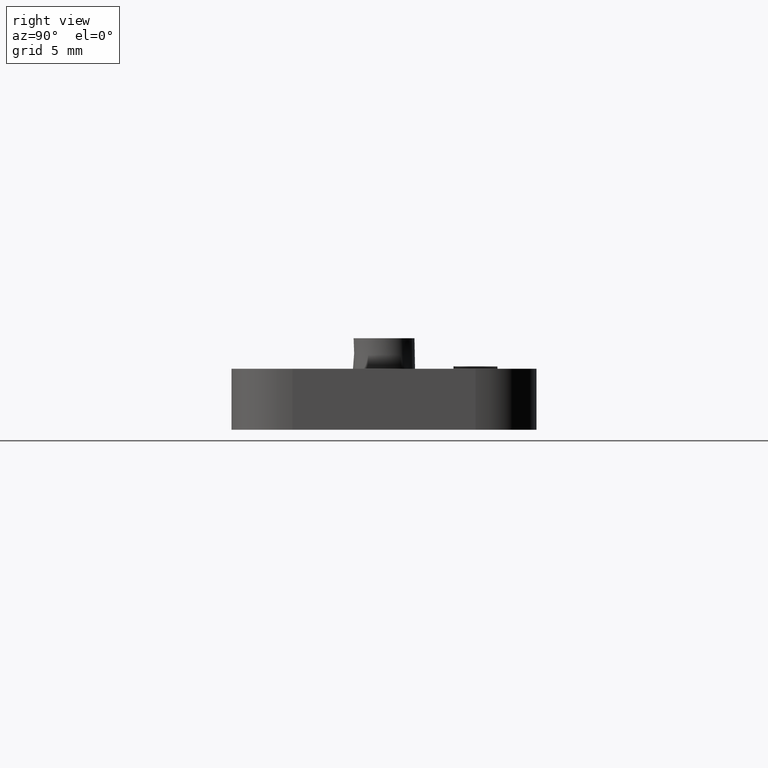
[diagram: clean part render]
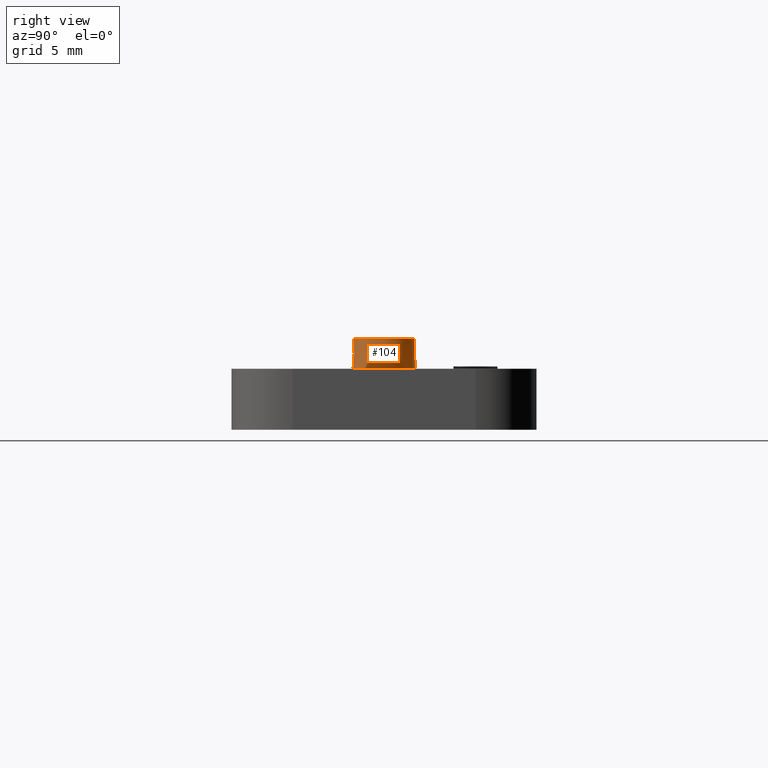
[diagram: same view with one face highlighted and labeled with its STEP entity id]
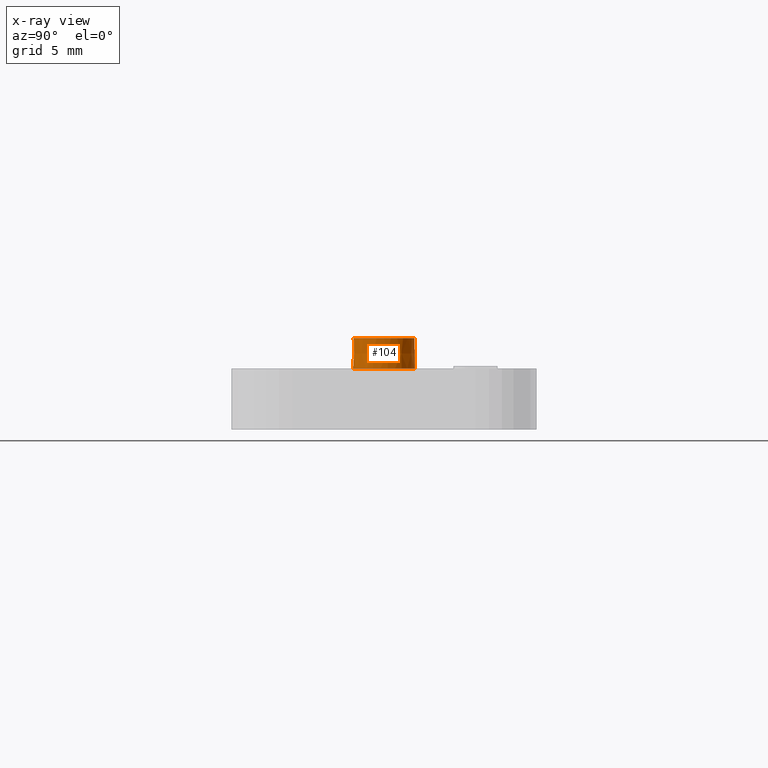
[diagram: x-ray of the same camera — body ghosted, the highlighted face saturated]
A machine part, right view. The second image highlights one B-rep face of the part: STEP entity #104.
The next image is the same camera in x-ray: the body ghosted, the highlighted face saturated — about 0% of this face is hidden behind the body in this view.
In plain terms, the highlighted conical surface has half-angle 1 deg.
Its self-contained STEP definition (entity closure, byte-faithful):
#104 = ADVANCED_FACE( '', ( #483, #484 ), #485, .T. );
#483 = FACE_OUTER_BOUND( '', #1135, .T. );
#484 = FACE_BOUND( '', #1136, .T. );
#485 = CONICAL_SURFACE( '', #1137, 2.50000000000000, 0.0174532925199433 );
#1135 = EDGE_LOOP( '', ( #2138 ) );
#1136 = EDGE_LOOP( '', ( #2139 ) );
#1137 = AXIS2_PLACEMENT_3D( '', #2140, #2141, #2142 );
#2138 = ORIENTED_EDGE( '', *, *, #4119, .F. );
#2139 = ORIENTED_EDGE( '', *, *, #4430, .T. );
#2140 = CARTESIAN_POINT( '', ( 19.5000000000000, 2.57342161903013E-015, 7.50000000000000 ) );
#2141 = DIRECTION( '', ( 0.000000000000000, -6.12303176911189E-017, -1.00000000000000 ) );
#2142 = DIRECTION( '', ( 0.000000000000000, 1.00000000000000, -6.12303176911189E-017 ) );
#4119 = EDGE_CURVE( '', #4890, #4890, #4891, .T. );
#4430 = EDGE_CURVE( '', #5490, #5490, #5491, .T. );
#4890 = VERTEX_POINT( '', #6169 );
#4891 = CIRCLE( '', #6170, 2.54363766232055 );
#5490 = VERTEX_POINT( '', #7067 );
#5491 = CIRCLE( '', #7068, 2.50000000000000 );
#6169 = CARTESIAN_POINT( '', ( 19.5000000000000, 2.54363766232055, 5.00000000000000 ) );
#6170 = AXIS2_PLACEMENT_3D( '', #8159, #8160, #8161 );
#7067 = CARTESIAN_POINT( '', ( 22.0000000000000, 2.72649741325792E-015, 7.50000000000000 ) );
#7068 = AXIS2_PLACEMENT_3D( '', #8496, #8497, #8498 );
#8159 = CARTESIAN_POINT( '', ( 19.5000000000000, 2.42034582480233E-015, 5.00000000000000 ) );
#8160 = DIRECTION( '', ( 0.000000000000000, -6.12303176911189E-017, -1.00000000000000 ) );
#8161 = DIRECTION( '', ( 0.000000000000000, 1.00000000000000, -6.12303176911189E-017 ) );
#8496 = CARTESIAN_POINT( '', ( 19.5000000000000, 2.57342161903013E-015, 7.50000000000000 ) );
#8497 = DIRECTION( '', ( -4.37905770101505E-049, -6.12303176911189E-017, -1.00000000000000 ) );
#8498 = DIRECTION( '', ( 1.00000000000000, 6.12303176911188E-017, -3.74915180455534E-033 ) );